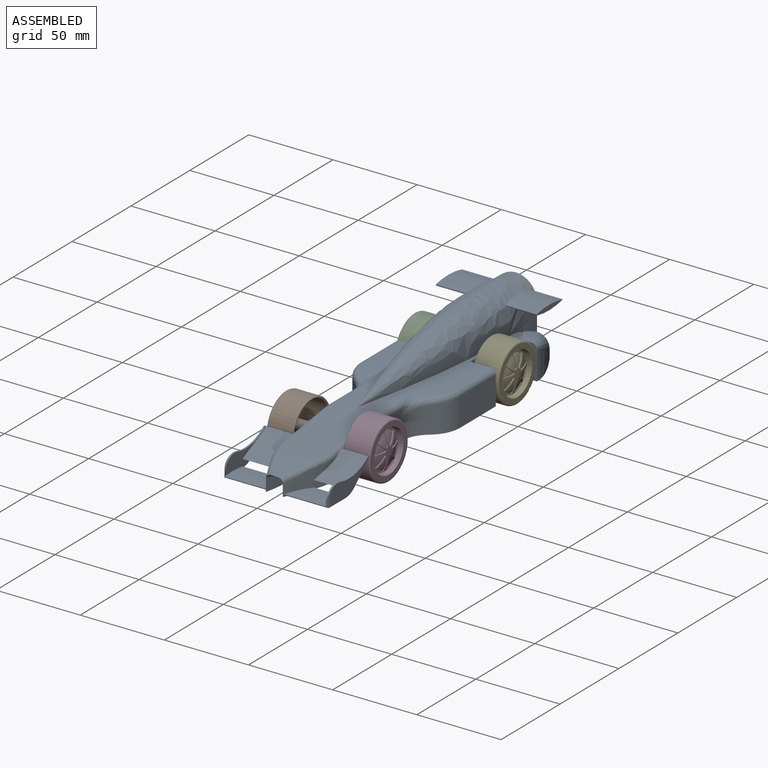
[diagram: assembled view]
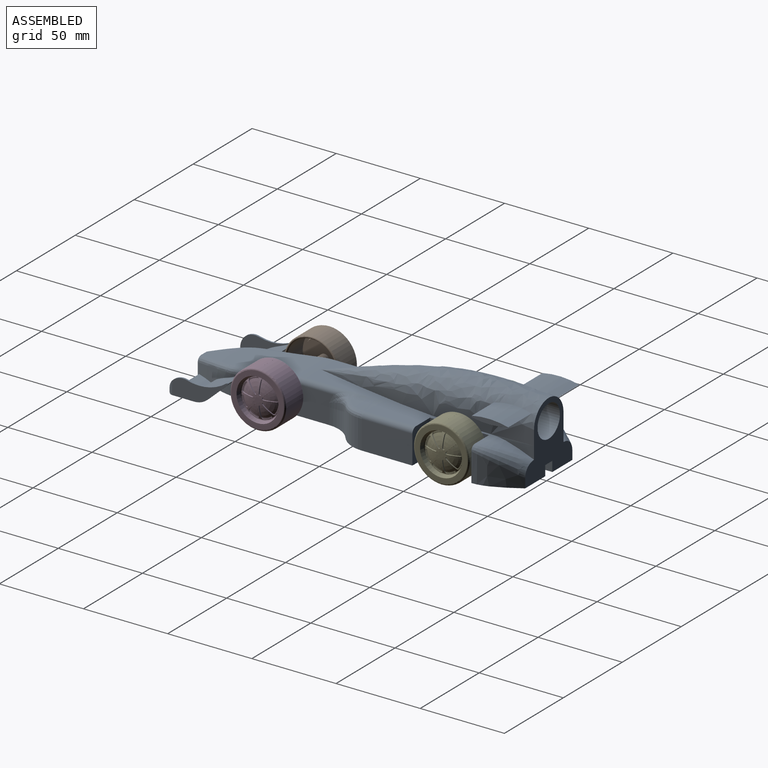
[diagram: assembled view, second angle]
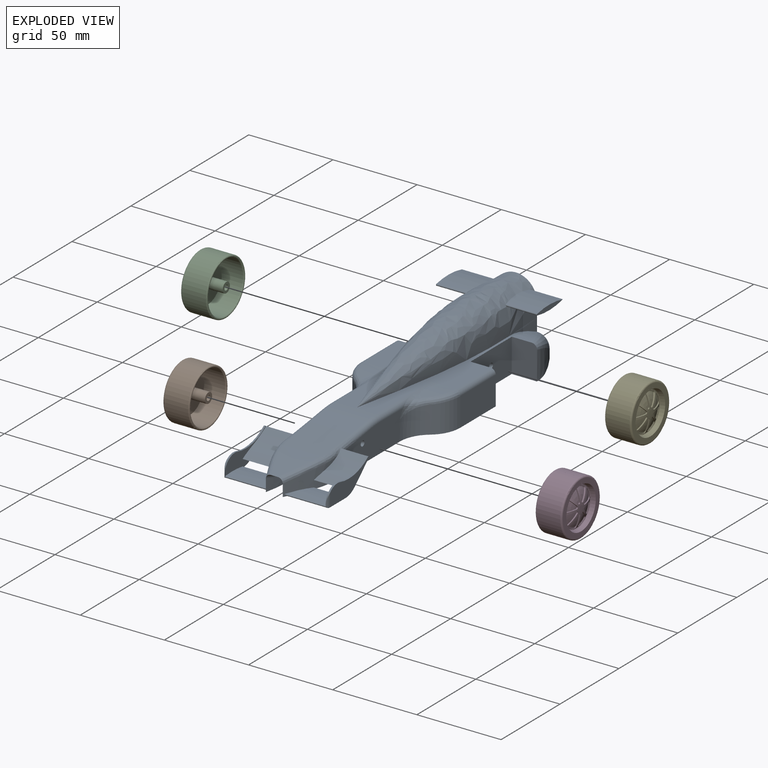
[diagram: exploded view]
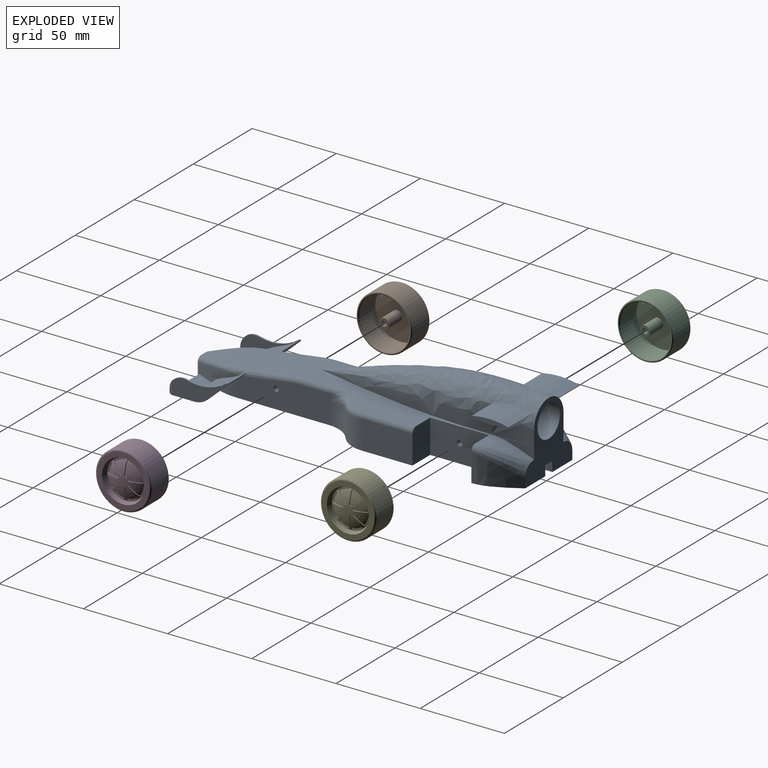
[diagram: exploded view, second angle]
ASSEMBLY  parts=5 mates=4
PART A: 119 faces, bbox 62.6x210.9x45.6 mm
  f0: plane 32.93x14.97mm, normal (1,0,0), area 235.8mm2, adj f11,f111,f112,f113,f114,f115,f118
  f1: cylinder r=3.57mm len=8mm, axis (0,0,-1), area 15.6mm2, adj f2,f4,f12,f13,f117
  f2: plane 0.49x0.03mm, normal (0,-1,0), area 0mm2, adj f1,f3,f13,f117
  f3: plane 35.37x14.97mm, normal (1,0,0), area 205.7mm2, adj f2,f9,f12,f13,f90,f91,f92,f96
  f4: plane 32.93x14.97mm, normal (-1,0,0), area 235.8mm2, adj f1,f9,f12,f105,f106,f107,f117
  f5: plane 205x27mm, normal (0,0,-1), area 3293mm2, adj f7,f16,f19,f24,f26,f34,f36,f39
  f6: plane 205x27mm, normal (0,0,-1), area 3291.5mm2, adj f8,f17,f19,f21,f22,f23,f25,f29
  f7: plane 194.55x6.04mm, normal (-1,0,0), area 1142.5mm2, adj f5,f19,f51,f116
  f8: plane 194.55x6.04mm, normal (1,0,0), area 1142.5mm2, adj f6,f19,f51,f116
  f9: cylinder r=26.86mm len=23.55mm, axis (1,0,0), area 24.9mm2, adj f3,f4,f106,f117
  f10: plane 0.49x0.03mm, normal (0,-1,0), area 0mm2, adj f11,f109,f110,f118
  f11: cylinder r=3.57mm len=8mm, axis (0,0,-1), area 15.6mm2, adj f0,f10,f110,f111,f118
  f12: plane 13.85x1mm, normal (0,0,-1), area 13.8mm2, adj f1,f3,f4,f13,f104,f105
  f13: cylinder r=1.45mm len=1.45mm, axis (1,0,0), area 0.9mm2, adj f1,f2,f3,f12,f104
  f14: plane 1.9x1mm, normal (1,0,0), area 0.8mm2, adj f16,f54,f100
  f15: plane 1.9x1mm, normal (-1,0,0), area 0.8mm2, adj f17,f60,f99
  f16: bspline ~30x15mm, area 287.3mm2, adj f5,f14,f26,f52,f53,f93,f94,f95
  f17: bspline ~30x15mm, area 287.3mm2, adj f6,f15,f25,f58,f59,f90,f91,f92
  f18: bspline ~135x31.11mm, area 5770.7mm2, adj f19,f20,f27,f28,f80,f81,f82,f84
  f19: plane 41.59x40.59mm, normal (0,1,0), area 803.1mm2, adj f5,f6,f7,f8,f18,f27,f28,f29
  f20: plane 111.01x54mm, normal (0,0,1), area 1779.8mm2, adj f18,f23,f24,f31,f33,f41,f43,f45
  f21: cylinder r=18.75mm len=16.11mm, axis (0,0,-1), area 242.8mm2, adj f6,f22,f25,f69
  f22: cylinder r=18.75mm len=17mm, axis (0,0,-1), area 287.8mm2, adj f6,f21,f44,f68
  f23: plane 35x20mm, normal (-1,0,0), area 692mm2, adj f6,f20,f32,f43,f89
  f24: plane 35x20mm, normal (1,0,0), area 692mm2, adj f5,f20,f36,f41,f89
  f25: plane 57.54x17mm, normal (-1,0,0), area 841.5mm2, adj f6,f17,f21,f60,f61,f62,f63,f76
  f26: plane 57.54x17mm, normal (1,0,0), area 841.5mm2, adj f5,f16,f40,f54,f55,f56,f57,f79
  f27: extruded ~25x7.51mm, area 70.2mm2, adj f18,f19,f33,f70
  f28: extruded ~25x7.51mm, area 69.5mm2, adj f18,f19,f31,f72
  f29: bspline ~25x20mm, area 309.3mm2, adj f6,f19,f32,f72,f73
  f30: bspline ~25x15mm, area 118.1mm2, adj f31,f32,f73
  f31: extruded ~24.39x7.22mm, area 46.3mm2, adj f20,f28,f30,f72
  f32: plane 20.1x15.1mm, normal (0,-1,0), area 298.1mm2, adj f6,f23,f29,f30,f73
  f33: extruded ~24.4x7.23mm, area 46.4mm2, adj f20,f27,f35,f70
  f34: bspline ~25x20mm, area 309.3mm2, adj f5,f19,f36,f70,f71
  f35: bspline ~25x15mm, area 118.1mm2, adj f33,f36,f71
  f36: plane 20.1x15.1mm, normal (0,-1,0), area 298.1mm2, adj f5,f24,f34,f35,f71
  f37: cylinder r=9.5mm len=52mm, axis (0,1,0), area 3103.9mm2, adj f19,f38
  f38: plane 19x19mm, normal (0,1,0), area 283.5mm2, adj f37
  f39: cylinder r=18.75mm len=17mm, axis (0,0,-1), area 287.8mm2, adj f5,f40,f42,f65
  f40: cylinder r=18.75mm len=16.11mm, axis (0,0,-1), area 242.8mm2, adj f5,f26,f39,f66
  f41: plane 20x15mm, normal (0,1,0), area 298.1mm2, adj f5,f20,f24,f42,f64
  f42: plane 30x17mm, normal (1,0,0), area 510mm2, adj f5,f39,f41,f64
  f43: plane 20x15mm, normal (0,1,0), area 298.1mm2, adj f6,f20,f23,f44,f67
  f44: plane 30x17mm, normal (-1,0,0), area 510mm2, adj f6,f22,f43,f67
  f45: cylinder r=92.5mm len=15.53mm, axis (-1,0,0), area 126.8mm2, adj f20,f68,f69,f74
  f46: cylinder r=92.5mm len=15.53mm, axis (1,0,0), area 126.8mm2, adj f20,f65,f66,f77
  f47: plane 24x12.97mm, normal (0,-0.14,0.99), area 314.5mm2, adj f48,f50,f55,f61
  f48: cylinder r=60mm len=24mm, axis (1,0,0), area 204.3mm2, adj f20,f47,f56,f62
  f49: bspline ~30x30mm, area 311.6mm2, adj f50,f52,f58,f116
  f50: bspline ~27.9x24.13mm, area 579.4mm2, adj f47,f49,f53,f54,f59,f60
  f51: plane 194.56x6.04mm, normal (0,0,-1), area 1144.5mm2, adj f7,f8,f19,f116
  f52: bspline ~30.02x13.66mm, area 116.6mm2, adj f16,f49,f53,f116
  f53: bspline ~10.45x4.23mm, area 30.2mm2, adj f16,f50,f52,f54
  f54: bspline ~54.83x11.22mm, area 84.3mm2, adj f14,f26,f50,f53,f55,f100,f103
  f55: cylinder r=3mm len=13.4mm, axis (0,0.99,0.14), area 61.7mm2, adj f26,f47,f54,f56
  f56: torus R=57mm, axis (1,0,0), area 39.4mm2, adj f26,f48,f55,f57
  f57: cylinder r=3mm len=45.74mm, axis (0,1,0), area 129.9mm2, adj f20,f26,f56,f77,f78
  f58: bspline ~30.02x13.66mm, area 116.6mm2, adj f17,f49,f59,f116
  f59: bspline ~10.45x4.23mm, area 30.2mm2, adj f17,f50,f58,f60
  f60: bspline ~54.83x11.22mm, area 84.3mm2, adj f15,f25,f50,f59,f61,f96,f99
  f61: cylinder r=3mm len=13.4mm, axis (0,-0.99,-0.14), area 61.7mm2, adj f25,f47,f60,f62
  f62: torus R=57mm, axis (1,0,0), area 39.4mm2, adj f25,f48,f61,f63
  f63: cylinder r=3mm len=45.74mm, axis (0,-1,0), area 129.9mm2, adj f20,f25,f62,f74,f75
  f64: cylinder r=3mm len=30mm, axis (0,-1,0), area 141.4mm2, adj f20,f41,f42,f65
  f65: bspline ~16.84x10.76mm, area 76.2mm2, adj f39,f46,f64,f66
  f66: bspline ~21.16x12.24mm, area 37.8mm2, adj f40,f46,f65,f78,f79
  f67: cylinder r=3mm len=30mm, axis (0,1,0), area 141.4mm2, adj f20,f43,f44,f68
  f68: bspline ~16.84x10.76mm, area 76.2mm2, adj f22,f45,f67,f69
  f69: bspline ~21.16x12.24mm, area 37.8mm2, adj f21,f45,f68,f75,f76
  f70: bspline ~9.3x9.24mm, area 37.1mm2, adj f19,f27,f33,f34,f71
  f71: bspline ~22.81x15mm, area 205mm2, adj f34,f35,f36,f70
  f72: bspline ~9.3x9.24mm, area 37mm2, adj f19,f28,f29,f31,f73
  f73: bspline ~22.81x15mm, area 205mm2, adj f29,f30,f32,f72
  f74: bspline ~25.43x8.56mm, area 27.9mm2, adj f45,f63,f75
  f75: bspline ~13.79x5.44mm, area 42.5mm2, adj f63,f69,f74,f76
  f76: bspline ~8.18x6.66mm, area 8.7mm2, adj f25,f69,f75
  f77: bspline ~25.43x8.56mm, area 27.9mm2, adj f46,f57,f78
  f78: bspline ~13.82x5.46mm, area 42.5mm2, adj f57,f66,f77,f79
  f79: bspline ~6.44x5.18mm, area 8.7mm2, adj f26,f66,f78
  f80: cylinder r=47.74mm len=21.59mm, axis (1,0,0), area 410.8mm2, adj f18,f81,f82,f83
  f81: cylinder r=47.74mm len=21.59mm, axis (1,0,0), area 417.4mm2, adj f18,f80,f82,f83
  f82: cylinder r=0.51mm len=18.71mm, axis (1,0,0), area 25.7mm2, adj f18,f80,f81,f83
  f83: plane 22x3mm, normal (1,0,0), area 46.8mm2, adj f80,f81,f82
  f84: cylinder r=0.51mm len=18.71mm, axis (-1,0,0), area 25.7mm2, adj f18,f85,f86,f87
  f85: cylinder r=47.74mm len=21.59mm, axis (-1,0,0), area 417.4mm2, adj f18,f84,f86,f87
  f86: cylinder r=47.74mm len=21.59mm, axis (-1,0,0), area 410.8mm2, adj f18,f84,f85,f87
  f87: plane 22x3mm, normal (-1,0,0), area 46.8mm2, adj f84,f85,f86
  f88: cylinder r=1.6mm len=30mm, axis (-1,0,0), area 301.6mm2, adj f25,f26
  f89: cylinder r=1.6mm len=30mm, axis (-1,0,0), area 301.6mm2, adj f23,f24
  f90: cylinder r=0.45mm len=24.5mm, axis (-1,0,0), area 32mm2, adj f3,f17,f91,f92,f104
  f91: cylinder r=53.29mm len=24.3mm, axis (-1,0,0), area 308mm2, adj f3,f17,f90,f92
  f92: cylinder r=53.29mm len=24.3mm, axis (-1,0,0), area 308mm2, adj f3,f17,f90,f91,f104
  f93: cylinder r=0.45mm len=24.5mm, axis (1,0,0), area 32mm2, adj f16,f94,f95,f108,f109
  f94: cylinder r=53.29mm len=24.3mm, axis (1,0,0), area 308mm2, adj f16,f93,f95,f108,f109
  f95: cylinder r=53.29mm len=24.3mm, axis (1,0,0), area 308mm2, adj f16,f93,f94,f109
  f96: cylinder r=29.92mm len=17.05mm, axis (-1,0,0), area 309.6mm2, adj f3,f17,f25,f60,f97,f99
  f97: plane 17.76x2.97mm, normal (0,0.17,-0.98), area 51.7mm2, adj f3,f17,f96,f98
  f98: cylinder r=50mm len=17.75mm, axis (-1,0,0), area 148.2mm2, adj f3,f17,f97,f99
  f99: cylinder r=62.23mm len=15.75mm, axis (-1,0,0), area 205.9mm2, adj f3,f15,f17,f60,f96,f98
  f100: cylinder r=62.23mm len=15.75mm, axis (1,0,0), area 205.9mm2, adj f14,f16,f54,f101,f103,f109
  f101: cylinder r=50mm len=17.75mm, axis (1,0,0), area 148.2mm2, adj f16,f100,f102,f109
  f102: plane 17.76x2.97mm, normal (0,0.17,-0.98), area 51.7mm2, adj f16,f101,f103,f109
  f103: cylinder r=29.92mm len=17.05mm, axis (1,0,0), area 309.6mm2, adj f16,f26,f54,f100,f102,f109
  f104: plane 5.86x0.43mm, normal (1,0,0), area 0.5mm2, adj f12,f13,f90,f92
  f105: cylinder r=11.77mm len=8mm, axis (1,0,0), area 8.8mm2, adj f3,f4,f12,f107
  f106: cylinder r=0.5mm len=1mm, axis (1,0,0), area 1.5mm2, adj f3,f4,f9,f107
  f107: plane 11.92x10.99mm, normal (0,0.68,-0.74), area 16.2mm2, adj f3,f4,f105,f106
  f108: plane 5.86x0.43mm, normal (-1,0,0), area 0.5mm2, adj f93,f94,f110,f111
  f109: plane 35.37x14.97mm, normal (-1,0,0), area 205.7mm2, adj f10,f93,f94,f95,f100,f101,f102,f103
  f110: cylinder r=1.45mm len=1.45mm, axis (-1,0,0), area 0.9mm2, adj f10,f11,f108,f109,f111
  f111: plane 13.85x1mm, normal (0,0,-1), area 13.8mm2, adj f0,f11,f108,f109,f110,f112
  f112: cylinder r=11.77mm len=8mm, axis (-1,0,0), area 8.8mm2, adj f0,f109,f111,f113
  f113: plane 11.92x10.99mm, normal (0,0.68,-0.74), area 16.2mm2, adj f0,f109,f112,f114
  f114: cylinder r=0.5mm len=1mm, axis (-1,0,0), area 1.5mm2, adj f0,f109,f113,f115
  f115: cylinder r=26.86mm len=23.55mm, axis (-1,0,0), area 24.9mm2, adj f0,f109,f114,f118
  f116: bspline ~15x10mm, area 315.8mm2, adj f5,f6,f7,f8,f16,f17,f49,f51
  f117: cylinder r=8.68mm len=11.02mm, axis (1,0,0), area 12.7mm2, adj f1,f2,f3,f4,f9
  f118: cylinder r=8.68mm len=11.02mm, axis (-1,0,0), area 12.7mm2, adj f0,f10,f11,f109,f115
PART B: 90 faces, bbox 16.1x36.1x36.1 mm
  f0: cylinder r=16.5mm len=16.5mm, axis (1,0,0), area 362.7mm2, adj f1,f3,f86,f88
  f1: torus R=15.5mm, axis (1,0,0), area 159.3mm2, adj f0,f2,f7,f84,f85,f86,f87,f88
  f2: cylinder r=16.5mm len=33mm, axis (1,0,0), area 1088.4mm2, adj f1,f3,f84,f87
  f3: torus R=15.81mm, axis (1,0,0), area 215.3mm2, adj f0,f2,f8,f84,f85,f86,f87,f88
  f4: torus R=13.24mm, axis (1,0,0), area 10.3mm2, adj f7,f15
  f5: cylinder r=1.55mm len=13mm, axis (1,0,0), area 126.6mm2, adj f6,f13
  f6: cone r=1.55mm half-angle=51.1deg, axis (-1,0,0), area 9.7mm2, adj f5
  f7: plane 31x31mm, normal (1,0,0), area 203.7mm2, adj f1,f4
  f8: cylinder r=15.12mm len=30.24mm, axis (1,0,0), area 1282.5mm2, adj f3,f9
  f9: plane 30.24x30.24mm, normal (-1,0,0), area 177.4mm2, adj f8,f10
  f10: cone r=13.12mm half-angle=16.7deg, axis (1,0,0), area 249.3mm2, adj f9,f11
  f11: plane 24.44x24.44mm, normal (-1,0,0), area 439.9mm2, adj f10,f12
  f12: cylinder r=3.05mm len=11.19mm, axis (1,0,0), area 214.4mm2, adj f11,f13
  f13: plane 6.1x6.1mm, normal (-1,0,0), area 21.7mm2, adj f5,f12
  f14: plane 26.24x26.24mm, normal (1,0,0), area 49.9mm2, adj f15,f17
  f15: cylinder r=13.12mm len=26.24mm, axis (1,0,0), area 0.6mm2, adj f4,f14
  f16: plane 3x3mm, normal (1,0,0), area 7.1mm2, adj f61
  f17: cone r=12.5mm half-angle=16.7deg, axis (1,0,0), area 188.9mm2, adj f14,f18
  f18: torus R=11.31mm, axis (1,0,0), area 65.6mm2, adj f17,f24,f30,f36,f42,f48,f54,f60
  f19: cylinder r=0.75mm len=1.28mm, axis (1,0,0), area 1.3mm2, adj f20,f23,f61,f68
  f20: plane 7.03x3.12mm, normal (0,-1,0), area 4.9mm2, adj f19,f21,f61,f68
  f21: cylinder r=1mm len=1.16mm, axis (1,0,0), area 1.1mm2, adj f20,f24,f61,f68,f69
  f22: cylinder r=1mm len=1.52mm, axis (1,0,0), area 1.1mm2, adj f23,f24,f61,f68,f69
  f23: plane 5.1x5.1mm, normal (0,0.71,-0.71), area 4.9mm2, adj f19,f22,f61,f68
  f24: cylinder r=11.05mm len=4.66mm, axis (1,0,0), area 1.8mm2, adj f18,f21,f22,f69
  f25: cylinder r=1mm len=1.16mm, axis (1,0,0), area 1.1mm2, adj f26,f30,f61,f70,f71
  f26: plane 7.03x3.12mm, normal (0,0,-1), area 4.9mm2, adj f25,f27,f61,f71
  f27: cylinder r=0.75mm len=1.28mm, axis (1,0,0), area 1.3mm2, adj f26,f29,f61,f71
  f28: cylinder r=1mm len=1.52mm, axis (1,0,0), area 1.1mm2, adj f29,f30,f61,f70,f71
  f29: plane 5.1x5.1mm, normal (0,-0.71,0.71), area 4.9mm2, adj f27,f28,f61,f71
  f30: cylinder r=11.05mm len=4.66mm, axis (1,0,0), area 1.8mm2, adj f18,f25,f28,f70
  f31: plane 7.03x3.12mm, normal (0,0,1), area 4.9mm2, adj f32,f35,f61,f72
  f32: cylinder r=1mm len=1.16mm, axis (1,0,0), area 1.1mm2, adj f31,f36,f61,f72,f73
  f33: cylinder r=1mm len=1.52mm, axis (1,0,0), area 1.1mm2, adj f34,f36,f61,f72,f73
  f34: plane 5.1x5.1mm, normal (0,-0.71,-0.71), area 4.9mm2, adj f33,f35,f61,f72
  f35: cylinder r=0.75mm len=1.28mm, axis (1,0,0), area 1.3mm2, adj f31,f34,f61,f72
  f36: cylinder r=11.05mm len=4.66mm, axis (1,0,0), area 1.8mm2, adj f18,f32,f33,f73
  f37: plane 5.1x5.1mm, normal (0,0.71,0.71), area 4.9mm2, adj f38,f41,f61,f80
  f38: cylinder r=1mm len=1.52mm, axis (1,0,0), area 1.1mm2, adj f37,f42,f61,f80,f81
  f39: cylinder r=1mm len=1.16mm, axis (1,0,0), area 1.1mm2, adj f40,f42,f61,f80,f81
  f40: plane 7.03x3.12mm, normal (0,-1,0), area 4.9mm2, adj f39,f41,f61,f80
  f41: cylinder r=0.75mm len=1.28mm, axis (1,0,0), area 1.3mm2, adj f37,f40,f61,f80
  f42: cylinder r=11.05mm len=4.66mm, axis (1,0,0), area 1.8mm2, adj f18,f38,f39,f81
  f43: plane 7.03x3.12mm, normal (0,1,0), area 4.9mm2, adj f44,f47,f61,f74
  f44: cylinder r=1mm len=1.16mm, axis (1,0,0), area 1.1mm2, adj f43,f48,f61,f74,f75
  f45: cylinder r=1mm len=1.52mm, axis (1,0,0), area 1.1mm2, adj f46,f48,f61,f74,f75
  f46: plane 5.1x5.1mm, normal (0,-0.71,0.71), area 4.9mm2, adj f45,f47,f61,f74
  f47: cylinder r=0.75mm len=1.28mm, axis (1,0,0), area 1.3mm2, adj f43,f46,f61,f74
  f48: cylinder r=11.05mm len=4.66mm, axis (1,0,0), area 1.8mm2, adj f18,f44,f45,f75
  f49: plane 5.1x5.1mm, normal (0,0.71,-0.71), area 4.9mm2, adj f50,f53,f61,f76
  f50: cylinder r=1mm len=1.52mm, axis (1,0,0), area 1.1mm2, adj f49,f54,f61,f76,f77
  f51: cylinder r=1mm len=1.16mm, axis (1,0,0), area 1.1mm2, adj f52,f54,f61,f76,f77
  f52: plane 7.03x3.12mm, normal (0,0,1), area 4.9mm2, adj f51,f53,f61,f76
  f53: cylinder r=0.75mm len=1.28mm, axis (1,0,0), area 1.3mm2, adj f49,f52,f61,f76
  f54: cylinder r=11.05mm len=4.66mm, axis (1,0,0), area 1.8mm2, adj f18,f50,f51,f77
  f55: plane 7.03x3.12mm, normal (0,0,-1), area 4.9mm2, adj f56,f59,f61,f78
  f56: cylinder r=1mm len=1.16mm, axis (1,0,0), area 1.1mm2, adj f55,f60,f61,f78,f79
  f57: cylinder r=1mm len=1.52mm, axis (1,0,0), area 1.1mm2, adj f58,f60,f61,f78,f79
  f58: plane 5.1x5.1mm, normal (0,0.71,0.71), area 4.9mm2, adj f57,f59,f61,f78
  f59: cylinder r=0.75mm len=1.28mm, axis (1,0,0), area 1.3mm2, adj f55,f58,f61,f78
  f60: cylinder r=11.05mm len=4.66mm, axis (1,0,0), area 1.8mm2, adj f18,f56,f57,f79
  f61: torus R=1.5mm, axis (1,0,0), area 131.6mm2, adj f16,f18,f19,f20,f21,f22,f23,f25
  f62: plane 5.1x5.1mm, normal (0,-0.71,-0.71), area 4.9mm2, adj f61,f63,f66,f82
  f63: cylinder r=1mm len=1.52mm, axis (1,0,0), area 1.1mm2, adj f61,f62,f67,f82,f83
  f64: cylinder r=1mm len=1.16mm, axis (1,0,0), area 1.1mm2, adj f61,f65,f67,f82,f83
  f65: plane 7.03x3.12mm, normal (0,1,0), area 4.9mm2, adj f61,f64,f66,f82
  f66: cylinder r=0.75mm len=1.28mm, axis (1,0,0), area 1.3mm2, adj f61,f62,f65,f82
  f67: cylinder r=11.05mm len=4.66mm, axis (1,0,0), area 1.8mm2, adj f18,f63,f64,f83
  f68: torus R=1.5mm, axis (1,0,0), area 29.3mm2, adj f19,f20,f21,f22,f23,f69
  f69: plane 6.16x3.12mm, normal (1,0,0), area 4.5mm2, adj f21,f22,f24,f68
  f70: plane 6.16x3.12mm, normal (1,0,0), area 4.5mm2, adj f25,f28,f30,f71
  f71: torus R=1.5mm, axis (1,0,0), area 29.3mm2, adj f25,f26,f27,f28,f29,f70
  f72: torus R=1.5mm, axis (1,0,0), area 29.3mm2, adj f31,f32,f33,f34,f35,f73
  f73: plane 6.16x3.12mm, normal (1,0,0), area 4.5mm2, adj f32,f33,f36,f72
  f74: torus R=1.5mm, axis (1,0,0), area 29.3mm2, adj f43,f44,f45,f46,f47,f75
  f75: plane 6.16x3.12mm, normal (1,0,0), area 4.5mm2, adj f44,f45,f48,f74
  f76: torus R=1.5mm, axis (1,0,0), area 29.3mm2, adj f49,f50,f51,f52,f53,f77
  f77: plane 6.16x3.12mm, normal (1,0,0), area 4.5mm2, adj f50,f51,f54,f76
  f78: torus R=1.5mm, axis (1,0,0), area 29.3mm2, adj f55,f56,f57,f58,f59,f79
  f79: plane 6.16x3.12mm, normal (1,0,0), area 4.5mm2, adj f56,f57,f60,f78
  f80: torus R=1.5mm, axis (1,0,0), area 29.3mm2, adj f37,f38,f39,f40,f41,f81
  f81: plane 6.16x3.12mm, normal (1,0,0), area 4.5mm2, adj f38,f39,f42,f80
  f82: torus R=1.5mm, axis (1,0,0), area 29.3mm2, adj f62,f63,f64,f65,f66,f83
  f83: plane 6.16x3.12mm, normal (1,0,0), area 4.5mm2, adj f63,f64,f67,f82
  f84: plane 14.18x0.01mm, normal (0,1,0), area 0.1mm2, adj f1,f2,f3,f85
  f85: plane 14.18x0.01mm, normal (0,0,1), area 0.1mm2, adj f1,f3,f84,f86
  f86: plane 14.18x0.01mm, normal (0,-1,0), area 0.1mm2, adj f0,f1,f3,f85
  f87: plane 14.18x0.01mm, normal (0,0,1), area 0.1mm2, adj f1,f2,f3,f89
  f88: plane 14.18x0.01mm, normal (0,0,-1), area 0.1mm2, adj f0,f1,f3,f89
  f89: plane 14.18x0.01mm, normal (0,1,0), area 0.1mm2, adj f1,f3,f87,f88
PART C: same geometry as B
PART D: same geometry as B
PART E: same geometry as B
PLACE A t=(-41.39,57.37,-23.69)mm
PLACE B rot(axis=(0,1,0),180deg) t=(-72.08,-94.13,-41.19)mm
PLACE C rot(axis=(0,1,0),180deg) t=(-72.08,14.87,-41.19)mm
PLACE D t=(-10.7,-94.13,-41.19)mm
PLACE E t=(-10.7,14.87,-41.19)mm
MATE fastened B.f0 <-> A.f88  axis (1,0,0) through (-56.39,-94.13,-41.19)mm
MATE fastened C.f0 <-> A.f89  axis (1,0,0) through (-56.39,14.87,-41.19)mm
MATE fastened D.f0 <-> A.f88  axis (-1,0,0) through (-26.39,-94.13,-41.19)mm
MATE fastened E.f0 <-> A.f89  axis (-1,0,0) through (-26.39,14.87,-41.19)mm
